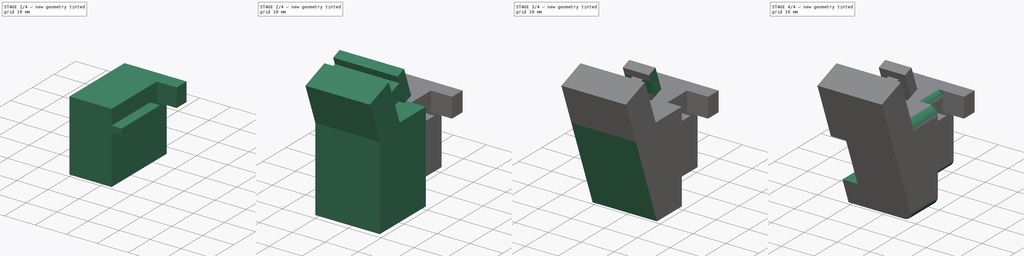
[diagram: build sequence overview — one tinted view per stage of 4, left to right]
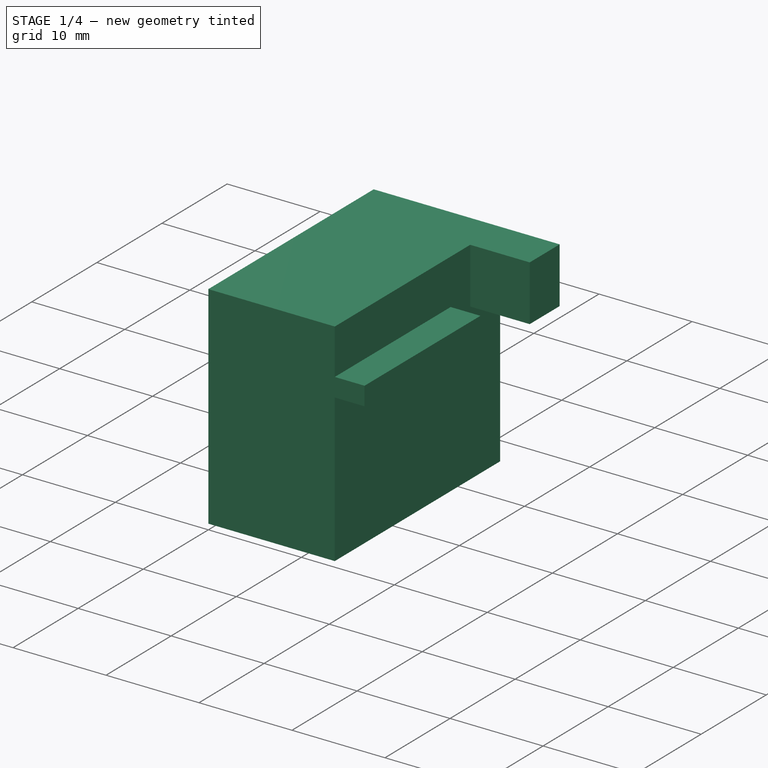
[diagram: stage 1 of 4 — iso view after this stage's code; geometry added in this stage tinted green]
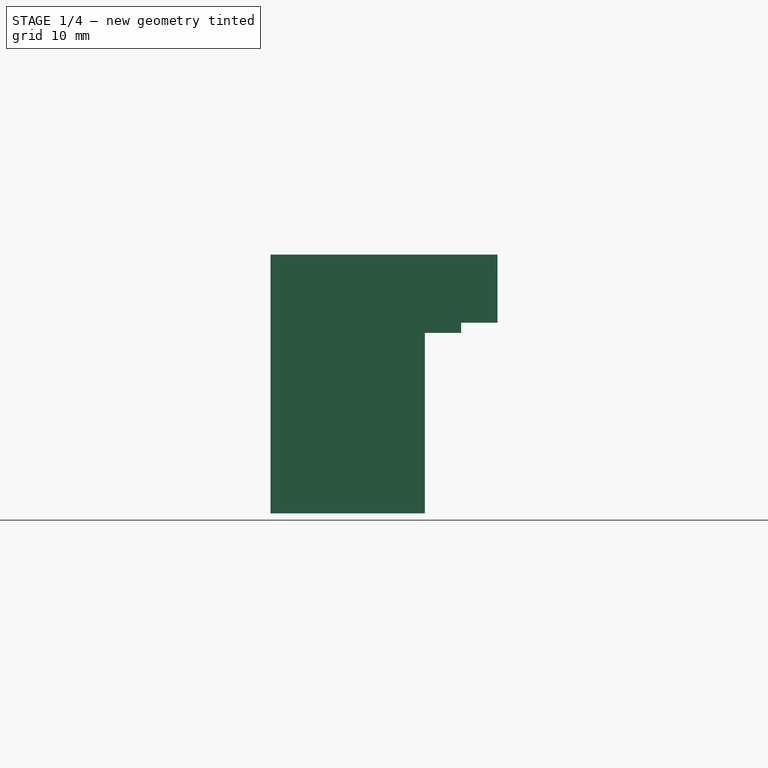
[diagram: stage 1 of 4 — front view after this stage's code; geometry added in this stage tinted green]
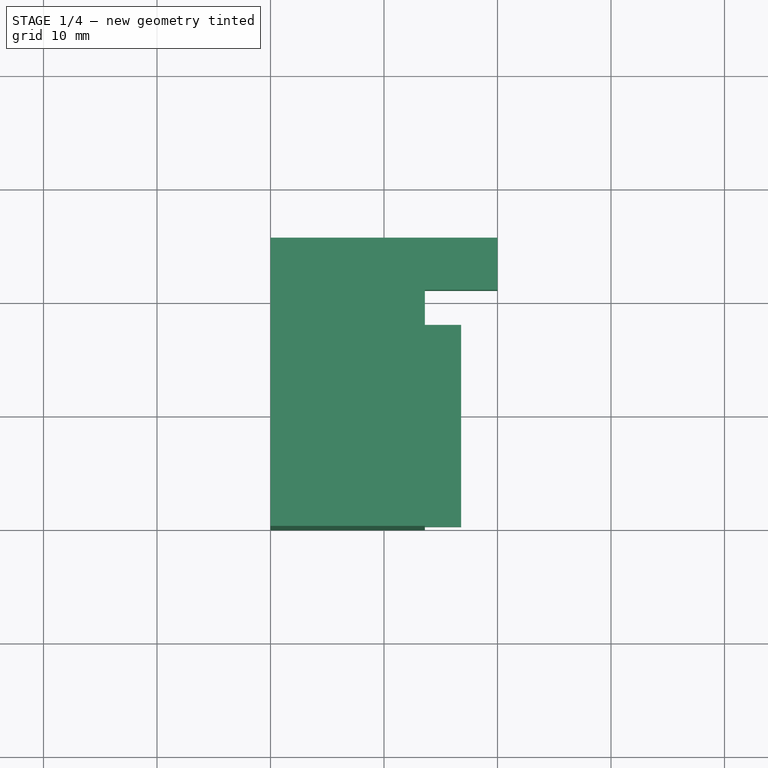
[diagram: stage 1 of 4 — top view after this stage's code; geometry added in this stage tinted green]
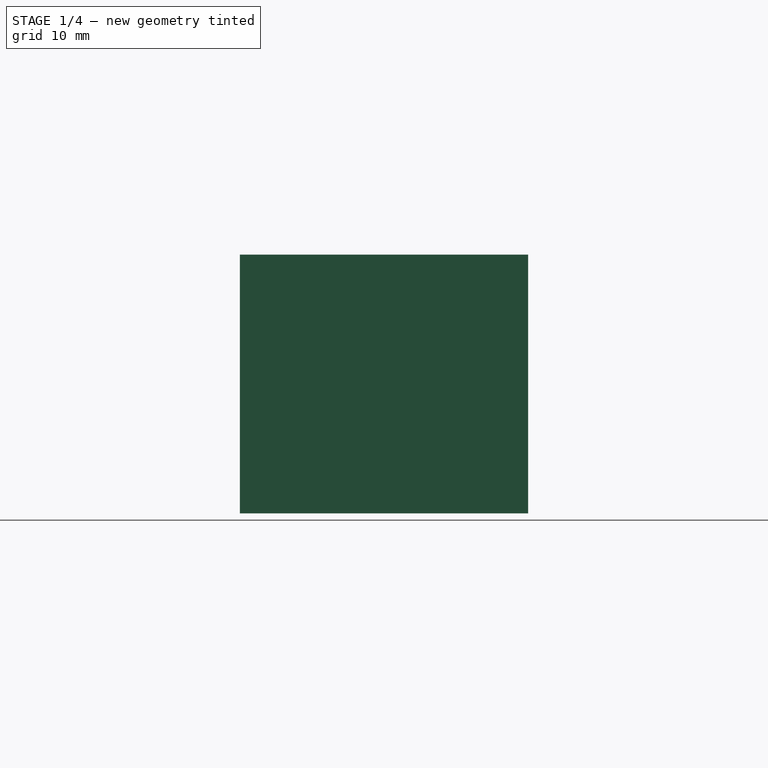
[diagram: stage 1 of 4 — right view after this stage's code; geometry added in this stage tinted green]
FCSTD DOCUMENT  (FreeCAD 0.20R29177 +426 (Git))
Label: portaVasos_derechaV3
License: All rights reserved
LicenseURL: http://en.wikipedia.org/wiki/All_rights_reserved
objects: Sketcher::SketchObject×12, PartDesign::Pad×5, PartDesign::Pocket×5, PartDesign::Plane×2, PartDesign::Fillet×2, PartDesign::Body×1, App::Part×1
note: 39 computed .brp shape members not serialized (recipe doc carries the construction recipe); baked Part::Feature solids carry a one-line shape summary decoded from their .brp

FEATURE [Sketcher::SketchObject] Sketch
  FullyConstrained = true
  MapMode = 5
  Placement = pos=(0,0,0) rot=(1,0,0;1.5708rad)
  Support = -> [XZ_Plane001]
  sketch-geometry (5):
    g0: GeomPoint X=0 Y=1 Z=0
    g1: LineSegment StartX=0 StartY=1 StartZ=0 EndX=13.6 EndY=1 EndZ=0
    g2: LineSegment StartX=13.6 StartY=1 StartZ=0 EndX=13.6 EndY=23.8 EndZ=0
    g3: LineSegment StartX=13.6 StartY=23.8 StartZ=0 EndX=0 EndY=23.8 EndZ=0
    g4: LineSegment StartX=0 StartY=23.8 StartZ=0 EndX=0 EndY=1 EndZ=0
  constraints (13):
    c: DistanceY(g-1,g0) = 1
    c: DistanceX(g-1,g0) = 0
    c: Coincident(g1,g2)
    c: Coincident(g2,g3)
    c: Coincident(g3,g4)
    c: Coincident(g4,g1)
    c: Horizontal(g1)
    c: Horizontal(g3)
    c: Vertical(g2)
    c: Vertical(g4)
    c: Coincident(g1,g0)
    c: DistanceX(g1,g1) = 13.6
    c: DistanceY(g4,g4) = 22.8
FEATURE [Sketcher::SketchObject] Sketch001
  FullyConstrained = true
  MapMode = 5
  Placement = pos=(0,0,0) rot=(1,0,0;1.5708rad)
  Support = -> [XZ_Plane001]
  sketch-geometry (5):
    g0: GeomPoint X=13.6 Y=16.9 Z=0
    g1: LineSegment StartX=13.6 StartY=16.9 StartZ=0 EndX=16.8 EndY=16.9 EndZ=0
    g2: LineSegment StartX=16.8 StartY=16.9 StartZ=0 EndX=16.8 EndY=18.9 EndZ=0
    g3: LineSegment StartX=16.8 StartY=18.9 StartZ=0 EndX=13.6 EndY=18.9 EndZ=0
    g4: LineSegment StartX=13.6 StartY=18.9 StartZ=0 EndX=13.6 EndY=16.9 EndZ=0
  constraints (13):
    c: DistanceX(g-1,g0) = 13.6
    c: DistanceY(g-1,g0) = 16.9
    c: Coincident(g1,g2)
    c: Coincident(g2,g3)
    c: Coincident(g3,g4)
    c: Coincident(g4,g1)
    c: Horizontal(g1)
    c: Horizontal(g3)
    c: Vertical(g2)
    c: Vertical(g4)
    c: Coincident(g1,g0)
    c: DistanceX(g1,g1) = 3.2
    c: DistanceY(g2,g2) = 2
FEATURE [Sketcher::SketchObject] Sketch002
  FullyConstrained = true
  MapMode = 5
  Placement = pos=(0,0,0) rot=(1,0,0;1.5708rad)
  Support = -> [XZ_Plane001]
  sketch-geometry (5):
    g0: GeomPoint X=0 Y=23.8 Z=0
    g1: LineSegment StartX=0 StartY=23.8 StartZ=0 EndX=20 EndY=23.8 EndZ=0
    g2: LineSegment StartX=20 StartY=23.8 StartZ=0 EndX=20 EndY=17.8 EndZ=0
    g3: LineSegment StartX=20 StartY=17.8 StartZ=0 EndX=0 EndY=17.8 EndZ=0
    g4: LineSegment StartX=0 StartY=17.8 StartZ=0 EndX=0 EndY=23.8 EndZ=0
  constraints (13):
    c: DistanceY(g-1,g0) = 23.8
    c: DistanceX(g0,g-1) = 0
    c: Coincident(g1,g2)
    c: Coincident(g2,g3)
    c: Coincident(g3,g4)
    c: Coincident(g4,g1)
    c: Horizontal(g1)
    c: Horizontal(g3)
    c: Vertical(g2)
    c: Vertical(g4)
    c: Coincident(g1,g0)
    c: DistanceY(g2,g2) = 6
    c: DistanceX(g3,g3) = 20
FEATURE [Sketcher::SketchObject] Sketch003
  FullyConstrained = true
  MapMode = 5
  Placement = pos=(0,0,0) rot=(1,0,0;1.5708rad)
  Support = -> [XZ_Plane001]
  sketch-geometry (5):
    g0: GeomPoint X=0 Y=18.2 Z=0
    g1: LineSegment StartX=0 StartY=18.2 StartZ=0 EndX=4.6 EndY=18.2 EndZ=0
    g2: LineSegment StartX=4.6 StartY=18.2 StartZ=0 EndX=4.6 EndY=4.6 EndZ=0
    g3: LineSegment StartX=4.6 StartY=4.6 StartZ=0 EndX=0 EndY=4.6 EndZ=0
    g4: LineSegment StartX=0 StartY=4.6 StartZ=0 EndX=0 EndY=18.2 EndZ=0
  constraints (13):
    c: DistanceY(g-1,g0) = 18.2
    c: DistanceX(g0,g-1) = 0
    c: Coincident(g1,g2)
    c: Coincident(g2,g3)
    c: Coincident(g3,g4)
    c: Coincident(g4,g1)
    c: Horizontal(g1)
    c: Horizontal(g3)
    c: Vertical(g2)
    c: Vertical(g4)
    c: Coincident(g1,g0)
    c: DistanceY(g2,g2) = 13.6
    c: DistanceX(g3,g3) = 4.6
FEATURE [PartDesign::Pad] Pad
  Direction = (0,-1,-2e-16)
  Length = 25.4
  Length2 = 10
  Placement = pos=(0,0,0) rot=(1,0,0;1.5708rad)
  Profile = -> Sketch
  ReferenceAxis = -> Sketch [N_Axis]
  Reversed = true
  Type = 0
FEATURE [PartDesign::Pad] Pad001
  BaseFeature = -> Pad
  Direction = (0,-1,-2e-16)
  Length = 17.8
  Length2 = 10
  Placement = pos=(0,0,0) rot=(1,0,0;1.5708rad)
  Profile = -> Sketch001
  ReferenceAxis = -> Sketch001 [N_Axis]
  Reversed = true
  Type = 0
FEATURE [PartDesign::Pad] Pad002
  BaseFeature = -> Pad001
  Direction = (0,-1,-2e-16)
  Length = 20.8
  Length2 = -25.4
  Placement = pos=(0,0,0) rot=(1,0,0;1.5708rad)
  Profile = -> Sketch002
  ReferenceAxis = -> Sketch002 [N_Axis]
  Reversed = true
  Type = 4
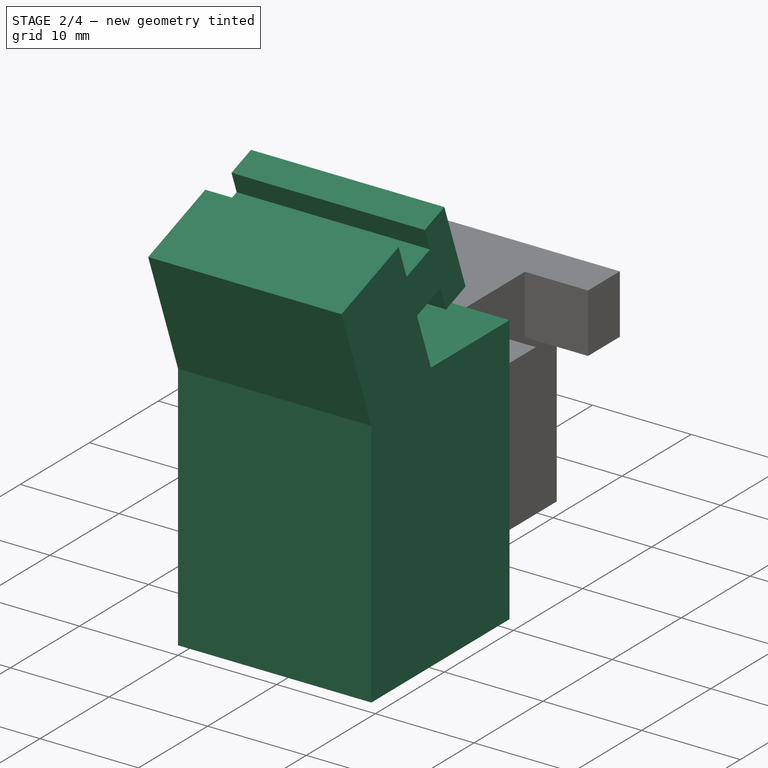
[diagram: stage 2 of 4 — iso view after this stage's code; geometry added in this stage tinted green]
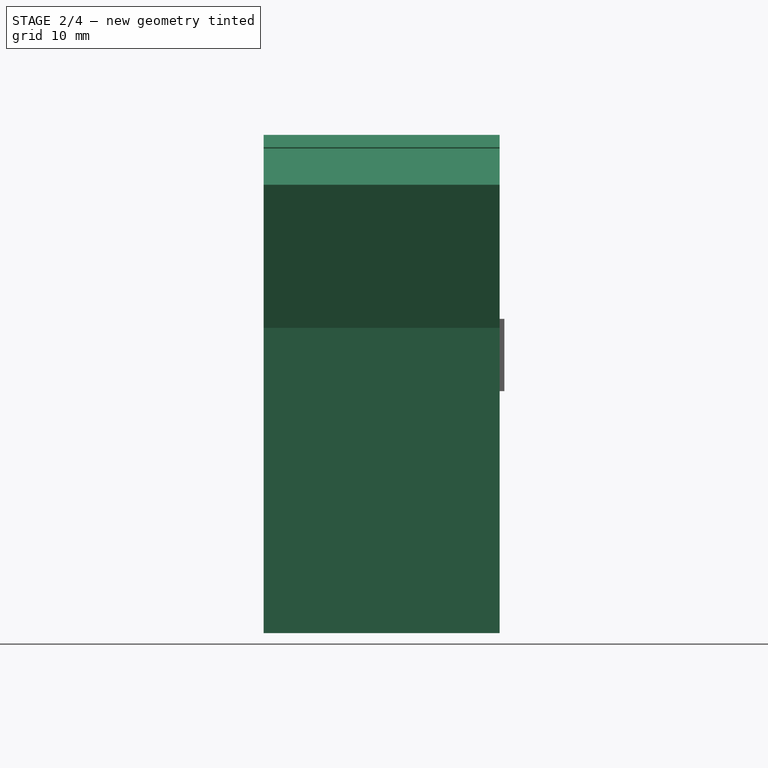
[diagram: stage 2 of 4 — front view after this stage's code; geometry added in this stage tinted green]
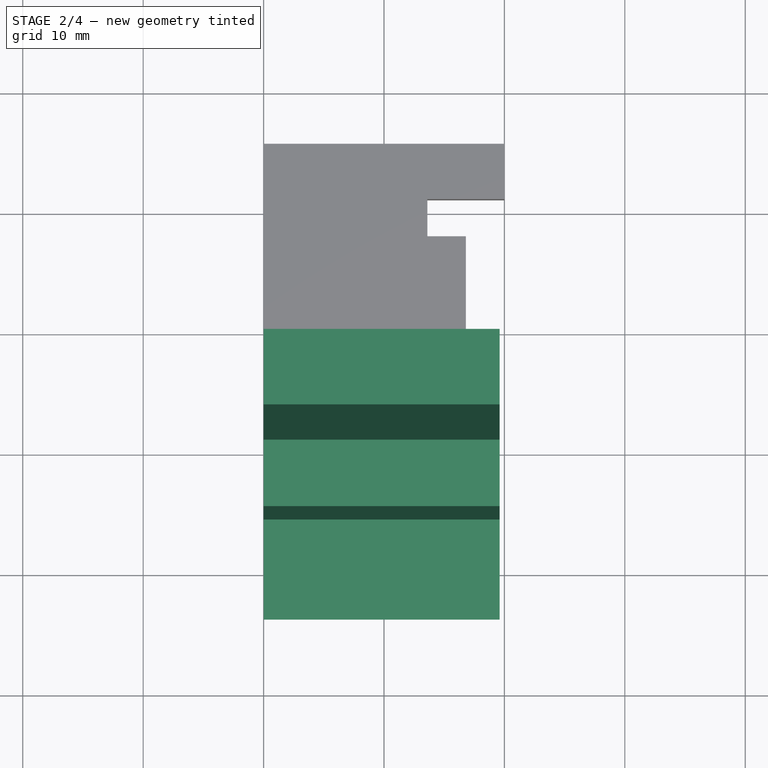
[diagram: stage 2 of 4 — top view after this stage's code; geometry added in this stage tinted green]
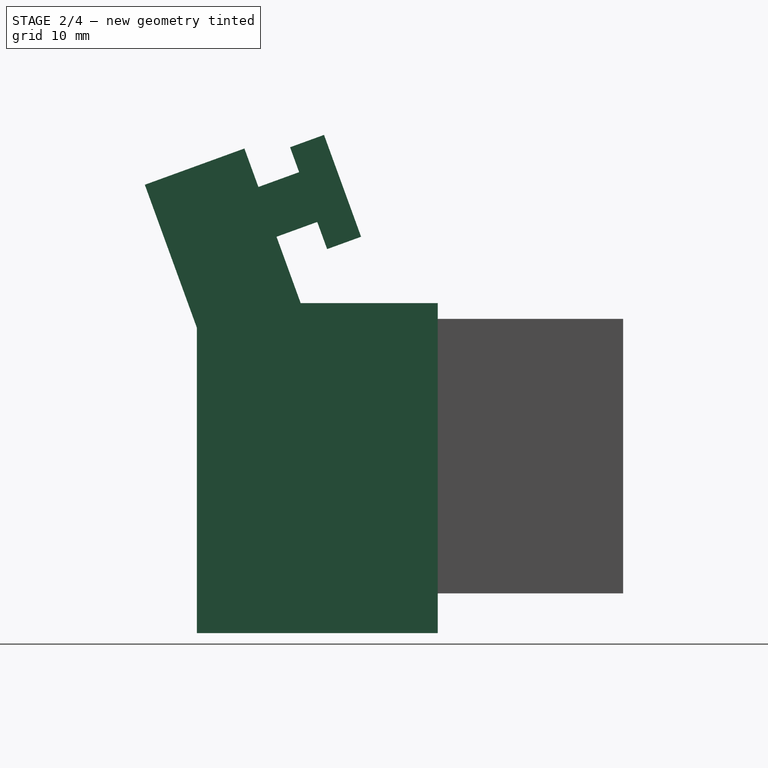
[diagram: stage 2 of 4 — right view after this stage's code; geometry added in this stage tinted green]
FEATURE [Sketcher::SketchObject] Sketch004
  FullyConstrained = false
  MapMode = 5
  Placement = pos=(0,0,0) rot=(1,0,0;1.5708rad)
  Support = -> [XZ_Plane001]
  sketch-geometry (6):
    g0: ArcOfCircle CenterX=12.1352 CenterY=21.3353 CenterZ=0 NormalX=0 NormalY=0 NormalZ=1 AngleXU=0 Radius=1.46475 StartAngle=-2.0952e-12 EndAngle=1.5708
    g1: ArcOfCircle CenterX=12.1352 CenterY=1.46475 CenterZ=0 NormalX=0 NormalY=0 NormalZ=1 AngleXU=0 Radius=1.46475 StartAngle=4.71239 EndAngle=6.28319
    g2: LineSegment StartX=12.1352 StartY=-1.3e-15 StartZ=0 EndX=13.6 EndY=-1.3e-15 EndZ=0
    g3: LineSegment StartX=13.6 StartY=-1.3e-15 StartZ=0 EndX=13.6 EndY=1.46475 EndZ=0
    g4: LineSegment StartX=12.1352 StartY=22.8 StartZ=0 EndX=13.6 EndY=22.8 EndZ=0
    g5: LineSegment StartX=13.6 StartY=22.8 StartZ=0 EndX=13.6 EndY=21.3353 EndZ=0
  constraints (10):
    c: Coincident(g2,g3)
    c: Horizontal(g2)
    c: Vertical(g3)
    c: Coincident(g2,g1)
    c: Coincident(g3,g1)
    c: Coincident(g4,g5)
    c: Horizontal(g4)
    c: Vertical(g5)
    c: Coincident(g4,g0)
    c: Coincident(g5,g0)
FEATURE [Sketcher::SketchObject] Sketch005
  FullyConstrained = true
  MapMode = 5
  Placement = pos=(0,0,0) rot=(1,0,0;1.5708rad)
  Support = -> [XZ_Plane001]
  sketch-geometry (5):
    g0: GeomPoint X=0 Y=-2.3 Z=0
    g1: LineSegment StartX=0 StartY=-2.3 StartZ=0 EndX=19.6 EndY=-2.3 EndZ=0
    g2: LineSegment StartX=19.6 StartY=-2.3 StartZ=0 EndX=19.6 EndY=25.1 EndZ=0
    g3: LineSegment StartX=19.6 StartY=25.1 StartZ=0 EndX=0 EndY=25.1 EndZ=0
    g4: LineSegment StartX=0 StartY=25.1 StartZ=0 EndX=0 EndY=-2.3 EndZ=0
  constraints (13):
    c: DistanceY(g0,g-1) = 2.3
    c: DistanceX(g-1,g0) = 0
    c: Coincident(g1,g2)
    c: Coincident(g2,g3)
    c: Coincident(g3,g4)
    c: Coincident(g4,g1)
    c: Horizontal(g1)
    c: Horizontal(g3)
    c: Vertical(g2)
    c: Vertical(g4)
    c: Coincident(g1,g0)
    c: DistanceX(g1,g1) = 19.6
    c: DistanceY(g2,g2) = 27.4
FEATURE [Sketcher::SketchObject] Sketch006
  FullyConstrained = false
  MapMode = 5
  Placement = pos=(0,0,0) rot=(0.57735,0.57735,0.57735;2.0944rad)
  Support = -> [YZ_Plane001]
  sketch-geometry (25):
    g0: LineSegment StartX=0 StartY=24.6 StartZ=0 EndX=-1.2 EndY=24.6 EndZ=0
    g1: LineSegment StartX=-1.2 StartY=24.6 StartZ=0 EndX=-1.2 EndY=29.982 EndZ=0
    g2: LineSegment StartX=-1.2 StartY=40.4 StartZ=0 EndX=-10 EndY=40.4 EndZ=0
    g3: LineSegment StartX=-10 StartY=40.4 StartZ=0 EndX=-10 EndY=24.6 EndZ=0
    g4: GeomPoint X=2e-16 Y=-1.8 Z=0
    g5-g8: Circle x4 (B-spline internal-alignment scaffolding for g9; pole/knot coordinates omitted)
    g9: BSplineCurve PolesCount=4 KnotsCount=2 Degree=3 IsPeriodic=0
    g10: GeomPoint X=-10 Y=24.6 Z=0
    g11: GeomPoint X=2e-16 Y=-1.8 Z=0
    g12: LineSegment StartX=-1.2 StartY=24.582 StartZ=0 EndX=-1.2 EndY=29.982 EndZ=0
    g13: LineSegment StartX=-1.2 StartY=35.382 StartZ=0 EndX=2 EndY=35.382 EndZ=0
    g14: LineSegment StartX=2 StartY=29.982 StartZ=0 EndX=-1.2 EndY=29.982 EndZ=0
    g15: LineSegment StartX=-1.2 StartY=35.382 StartZ=0 EndX=-1.2 EndY=40.4 EndZ=0
    g16: LineSegment StartX=0 StartY=24.6 StartZ=0 EndX=0 EndY=-1.8 EndZ=0
    g17: LineSegment StartX=2 StartY=35.382 StartZ=0 EndX=2 EndY=37.582 EndZ=0
    g18: LineSegment StartX=2 StartY=29.982 StartZ=0 EndX=2 EndY=27.582 EndZ=0
    g19: LineSegment StartX=2 StartY=27.582 StartZ=0 EndX=5 EndY=27.582 EndZ=0
    g20: LineSegment StartX=5 StartY=27.582 StartZ=0 EndX=2 EndY=27.582 EndZ=0
    g21: LineSegment StartX=2 StartY=27.582 StartZ=0 EndX=2 EndY=29.982 EndZ=0
    g22: LineSegment StartX=2 StartY=37.582 StartZ=0 EndX=5 EndY=37.582 EndZ=0
    g23: LineSegment StartX=5 StartY=37.582 StartZ=0 EndX=5 EndY=27.582 EndZ=0
    g24: LineSegment StartX=2 StartY=35.382 StartZ=0 EndX=2 EndY=37.582 EndZ=0
  constraints (50):
    c: Horizontal(g0)
    c: Coincident(g15,g2)
    c: Coincident(g2,g3)
    c: Horizontal(g2)
    c: Vertical(g1)
    c: Vertical(g3)
    c: DistanceX(g2,g2) = 8.8
    c: DistanceY(g3,g3) = 15.8
    c: DistanceY(g4,g-1) = 1.8
    c: DistanceX(g4,g-1) = 0
    c: Weight(g5) = 1
    c: Equal(g5,g6)
    c: Equal(g5,g7)
    c: Equal(g5,g8)
    c: Coincident(g9,g4)
    c: InternalAlignment(g5-g8 -> g9) x4
    c: InternalAlignment(g10,g9)
    c: InternalAlignment(g11,g9)
    c: DistanceY(g12,g12) = 5.4
    c: Angle(g12,g0) = 1.5708
    c: DistanceY(g12,g13) = 5.4
    c: Horizontal(g13)
    c: Horizontal(g14)
    c: DistanceY(g14,g13) = 5.4
    c: DistanceX(g14,g14) = 3.2
    c: PointOnObject(g1,g12)
    c: PointOnObject(g0,g1)
    c: Vertical(g16)
    c: Coincident(g15,g13)
    c: Coincident(g17,g13)
    c: Vertical(g17)
    c: DistanceY(g17,g17) = 2.2
    c: Vertical(g18)
    c: DistanceY(g18,g18) = 2.4
    c: Coincident(g19,g18)
    c: Horizontal(g19)
    c: DistanceX(g19,g19) = 3
    c: Coincident(g14,g1)
    c: Coincident(g20,g21)
    c: Coincident(g24,g22)
    c: Coincident(g22,g23)
    c: Coincident(g23,g20)
    c: Horizontal(g20)
    c: Horizontal(g22)
    c: Vertical(g21)
    c: Vertical(g23)
    c: Coincident(g20,g19)
    c: Coincident(g24,g17)
    c: PointOnObject(g21,g14)
    c: PointOnObject(g24,g13)
FEATURE [Sketcher::SketchObject] Sketch007
  FullyConstrained = true
  MapMode = 5
  Placement = pos=(0,0,0) rot=(0.57735,0.57735,0.57735;2.0944rad)
  Support = -> [YZ_Plane001]
  sketch-geometry (13):
    g0: GeomPoint X=-1.2 Y=24.6 Z=0
    g1: LineSegment StartX=-1.2 StartY=24.6 StartZ=0 EndX=-9.4693 EndY=21.5902 EndZ=0
    g2: LineSegment StartX=-9.4693 StartY=21.5902 StartZ=0 EndX=-14.326 EndY=34.9339 EndZ=0
    g3: LineSegment StartX=-14.326 StartY=34.9339 StartZ=0 EndX=-6.05669 EndY=37.9436 EndZ=0
    g4: LineSegment StartX=-6.05669 StartY=37.9436 StartZ=0 EndX=-4.89382 EndY=34.7487 EndZ=0
    g5: LineSegment StartX=-1.2 StartY=24.6 StartZ=0 EndX=-3.38893 EndY=30.614 EndZ=0
    g6: LineSegment StartX=-4.89382 StartY=34.7487 StartZ=0 EndX=-1.51092 EndY=35.98 EndZ=0
    g7: LineSegment StartX=-3.38893 StartY=30.614 StartZ=0 EndX=-0.00603548 EndY=31.8453 EndZ=0
    g8: LineSegment StartX=-1.51092 StartY=35.98 StartZ=0 EndX=-2.26337 EndY=38.0473 EndZ=0
    g9: LineSegment StartX=-0.00603548 StartY=31.8453 StartZ=0 EndX=0.814813 EndY=29.59 EndZ=0
    g10: LineSegment StartX=-2.26337 StartY=38.0473 StartZ=0 EndX=0.555709 EndY=39.0733 EndZ=0
    g11: LineSegment StartX=0.814813 StartY=29.59 StartZ=0 EndX=3.63389 EndY=30.6161 EndZ=0
    g12: LineSegment StartX=0.555709 StartY=39.0733 StartZ=0 EndX=3.63389 EndY=30.6161 EndZ=0
  constraints (37):
    c: DistanceX(g0,g-1) = 1.2
    c: DistanceY(g-1,g0) = 24.6
    c: Coincident(g1,g0)
    c: Angle(g1,g-2) = 1.22173
    c: Distance(g1) = 8.8
    c: Coincident(g2,g1)
    c: Angle(g1,g2) = 1.5708
    c: Distance(g2) = 14.2
    c: Coincident(g3,g2)
    c: Angle(g2,g3) = 1.5708
    c: Distance(g3) = 8.8
    c: Coincident(g4,g3)
    c: Angle(g3,g4) = 1.5708
    c: Distance(g4) = 3.4
    c: Coincident(g5,g1)
    c: Angle(g5,g1) = 1.5708
    c: Distance(g5) = 6.4
    c: Coincident(g6,g4)
    c: Angle(g6,g4) = 1.5708
    c: Distance(g6) = 3.6
    c: Coincident(g7,g5)
    c: Angle(g5,g7) = 1.5708
    c: Distance(g7) = 3.6
    c: Coincident(g8,g6)
    c: Coincident(g9,g7)
    c: Angle(g8,g6) = 1.5708
    c: Angle(g7,g9) = 1.5708
    c: Distance(g8) = 2.2
    c: Distance(g9) = 2.4
    c: Coincident(g10,g8)
    c: Coincident(g11,g9)
    c: Angle(g8,g10) = 1.5708
    c: Angle(g11,g9) = 1.5708
    c: Distance(g10) = 3
    c: Distance(g11) = 3
    c: Coincident(g12,g10)
    c: Coincident(g12,g11)
FEATURE [PartDesign::Pocket] Pocket
  BaseFeature = -> Pad002
  Direction = (0,1,2e-16)
  Length = 3.6
  Length2 = 5
  Placement = pos=(0,0,0) rot=(1,0,0;1.5708rad)
  Profile = -> Sketch003
  ReferenceAxis = -> Sketch003 [N_Axis]
  Type = 0
FEATURE [PartDesign::Pad] Pad003
  BaseFeature = -> Pocket
  Direction = (0,-1,-2e-16)
  Length = 10
  Length2 = 10
  Placement = pos=(0,0,0) rot=(1,0,0;1.5708rad)
  Profile = -> Sketch005
  ReferenceAxis = -> Sketch005 [N_Axis]
  Reversed = true
  Type = 4
FEATURE [PartDesign::Pad] Pad004
  BaseFeature = -> Pad003
  Direction = (1,-2e-16,3e-16)
  Length = 19.6
  Length2 = 10
  Placement = pos=(0,0,0) rot=(1,0,0;1.5708rad)
  Profile = -> Sketch007
  ReferenceAxis = -> Sketch007 [N_Axis]
  Type = 0
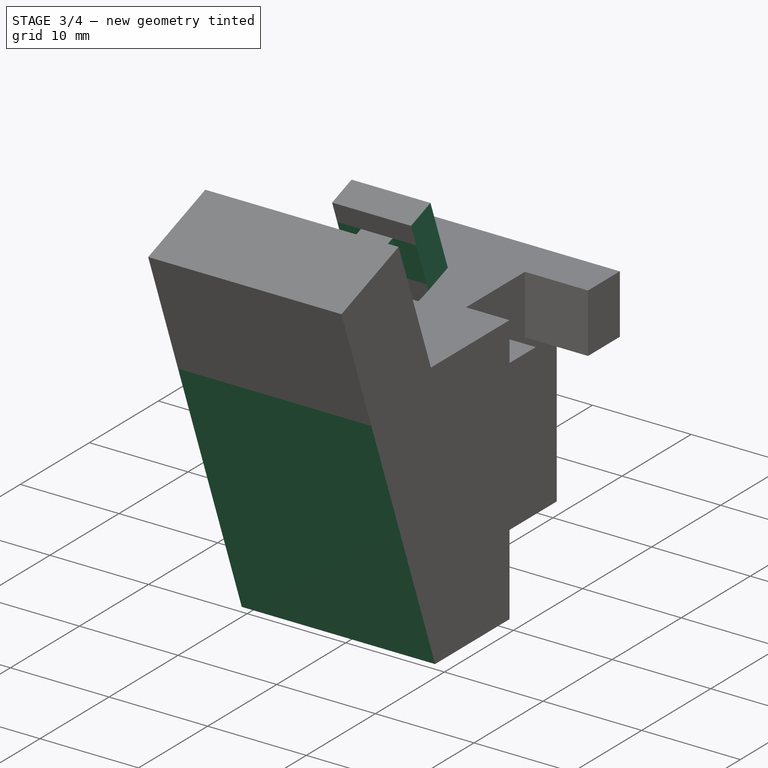
[diagram: stage 3 of 4 — iso view after this stage's code; geometry added in this stage tinted green]
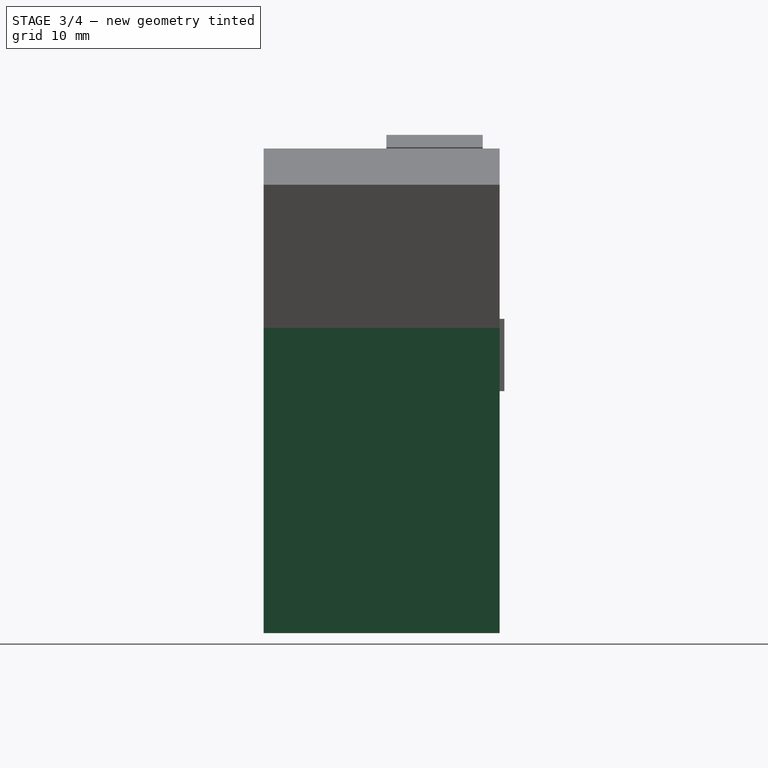
[diagram: stage 3 of 4 — front view after this stage's code; geometry added in this stage tinted green]
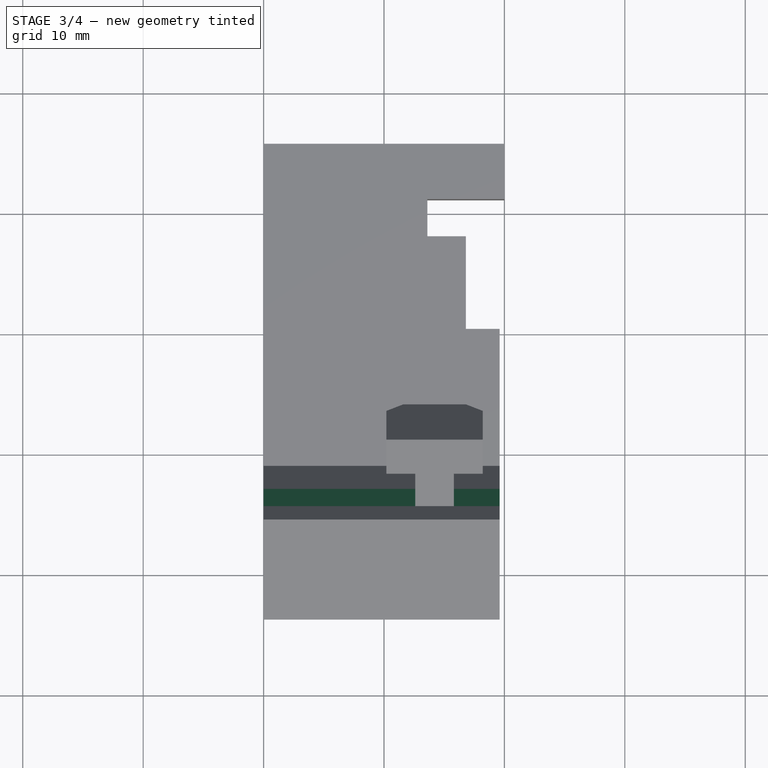
[diagram: stage 3 of 4 — top view after this stage's code; geometry added in this stage tinted green]
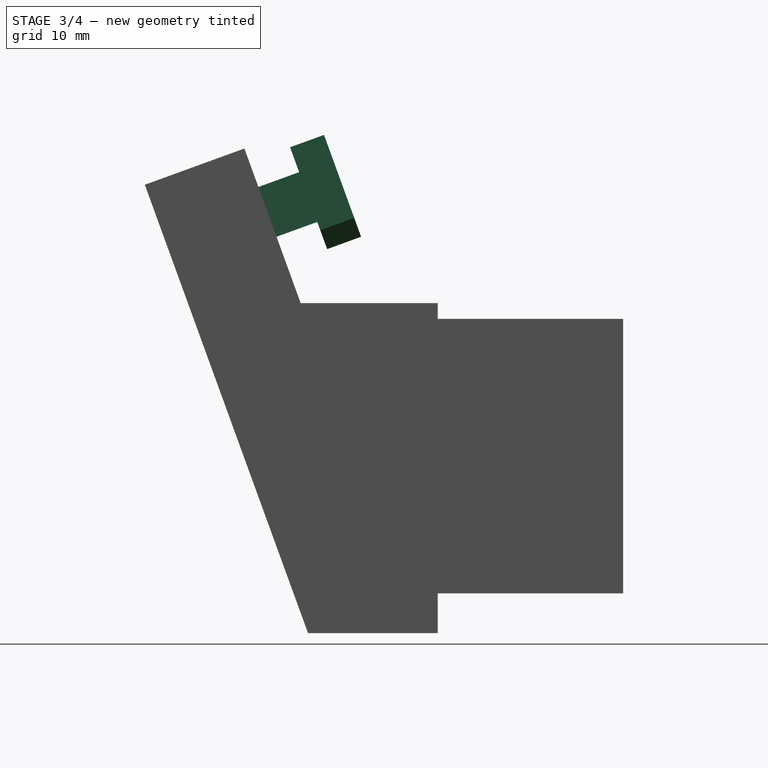
[diagram: stage 3 of 4 — right view after this stage's code; geometry added in this stage tinted green]
FEATURE [PartDesign::Plane] DatumPlane
  Length = 61.7707
  MapMode = 5
  Placement = pos=(-1.16e-14,-11.7405,32.2567) rot=(0,-0.173648,0.984808;3.14159rad)
  ResizeMode = 0
  Support = -> [Pad004]
  Width = 81.0456
FEATURE [Sketcher::SketchObject] Sketch008
  ExternalGeometry = -> [Pad004]
  FullyConstrained = true
  MapMode = 5
  Placement = pos=(-1.16e-14,-11.7405,32.2567) rot=(0,-0.173648,0.984808;3.14159rad)
  Support = -> [DatumPlane]
  sketch-geometry (8):
    g0: LineSegment StartX=-12.6 StartY=-10.8861 StartZ=0 EndX=-1.8e-15 EndY=-10.8861 EndZ=0
    g1: LineSegment StartX=-2.7e-15 StartY=-10.8861 StartZ=0 EndX=-2.7e-15 EndY=-7.28606 EndZ=0
    g2: LineSegment StartX=-2.7e-15 StartY=-7.28606 StartZ=0 EndX=-12.6 EndY=-7.28606 EndZ=0
    g3: LineSegment StartX=-12.6 StartY=-10.8861 StartZ=0 EndX=-12.6 EndY=-7.28606 EndZ=0
    g4: LineSegment StartX=-19.6 StartY=-10.8861 StartZ=0 EndX=-15.8 EndY=-10.8861 EndZ=0
    g5: LineSegment StartX=-15.8 StartY=-10.8861 StartZ=0 EndX=-15.8 EndY=-7.28606 EndZ=0
    g6: LineSegment StartX=-15.8 StartY=-7.28606 StartZ=0 EndX=-19.6 EndY=-7.28606 EndZ=0
    g7: LineSegment StartX=-19.6 StartY=-7.28606 StartZ=0 EndX=-19.6 EndY=-10.8861 EndZ=0
  constraints (22):
    c: Coincident(g0,g1)
    c: Coincident(g1,g2)
    c: Horizontal(g0)
    c: Horizontal(g2)
    c: Vertical(g1)
    c: Coincident(g1,g-3)
    c: DistanceX(g0,g0) = 12.6
    c: Coincident(g3,g0)
    c: Vertical(g3)
    c: Coincident(g3,g2)
    c: Coincident(g4,g5)
    c: Coincident(g5,g6)
    c: Coincident(g6,g7)
    c: Coincident(g7,g4)
    c: Horizontal(g4)
    c: Horizontal(g6)
    c: Vertical(g5)
    c: Vertical(g7)
    c: Coincident(g4,g-4)
    c: DistanceX(g6,g6) = 3.8
    c: DistanceY(g7,g7) = 3.6
    c: DistanceY(g3,g3) = 3.6
FEATURE [PartDesign::Pocket] Pocket001
  BaseFeature = -> Pad004
  Direction = (3e-16,0.34202,-0.939693)
  Length = 4.4
  Length2 = 5
  Placement = pos=(0,0,0) rot=(1,0,0;1.5708rad)
  Profile = -> Sketch008
  ReferenceAxis = -> Sketch008 [N_Axis]
  Type = 0
FEATURE [PartDesign::Plane] DatumPlane001
  Length = 62.4456
  MapMode = 5
  Placement = pos=(0,6.84666,2.49198) rot=(-1,0,0;1.22173rad)
  ResizeMode = 0
  Support = -> [Pocket001]
  Width = 89.8927
FEATURE [Sketcher::SketchObject] Sketch009
  ExternalGeometry = -> [Pocket001]
  FullyConstrained = false
  MapMode = 5
  Placement = pos=(0,6.84666,2.49198) rot=(-1,0,0;1.22173rad)
  Support = -> [DatumPlane001]
  sketch-geometry (12):
    g0: LineSegment StartX=11.6 StartY=-27.5269 StartZ=0 EndX=10.2 EndY=-29.1953 EndZ=0
    g1: LineSegment StartX=16.8 StartY=-27.5269 StartZ=0 EndX=18.2 EndY=-29.1953 EndZ=0
    g2: GeomPoint X=10.2 Y=-28.9269 Z=0
    g3: LineSegment StartX=10.2 StartY=-29.1953 StartZ=0 EndX=10.2 EndY=-36.5269 EndZ=0
    g4: GeomPoint X=18.2 Y=-28.9259 Z=0
    g5: LineSegment StartX=18.2 StartY=-36.5269 StartZ=0 EndX=18.2 EndY=-29.1953 EndZ=0
    g6: LineSegment StartX=19.6 StartY=-36.5269 StartZ=0 EndX=19.6 EndY=-27.5269 EndZ=0
    g7: LineSegment StartX=19.6 StartY=-27.5269 StartZ=0 EndX=16.8 EndY=-27.5269 EndZ=0
    g8: LineSegment StartX=0 StartY=-27.5269 StartZ=0 EndX=0 EndY=-36.5269 EndZ=0
    g9: LineSegment StartX=11.6 StartY=-27.5269 StartZ=0 EndX=0 EndY=-27.5269 EndZ=0
    g10: LineSegment StartX=0 StartY=-36.5269 StartZ=0 EndX=10.2 EndY=-36.5269 EndZ=0
    g11: LineSegment StartX=18.2 StartY=-36.5269 StartZ=0 EndX=19.6 EndY=-36.5269 EndZ=0
  constraints (20):
    c: DistanceX(g2,g-3) = 2.4
    c: DistanceY(g2,g-3) = -1
    c: Coincident(g3,g0)
    c: Vertical(g3)
    c: DistanceX(g2,g4) = 8
    c: Vertical(g5)
    c: Coincident(g1,g5)
    c: Coincident(g6,g7)
    c: Coincident(g9,g8)
    c: Horizontal(g7)
    c: Vertical(g6)
    c: Vertical(g8)
    c: Coincident(g6,g-4)
    c: Coincident(g7,g1)
    c: Coincident(g9,g0)
    c: Coincident(g10,g8)
    c: Horizontal(g10)
    c: Coincident(g11,g6)
    c: Coincident(g11,g5)
    c: Coincident(g3,g10)
FEATURE [PartDesign::Pocket] Pocket002
  BaseFeature = -> Pocket001
  Direction = (0,-0.939693,-0.34202)
  Length = 6.6
  Length2 = 5
  Placement = pos=(0,0,0) rot=(1,0,0;1.5708rad)
  Profile = -> Sketch009
  ReferenceAxis = -> Sketch009 [N_Axis]
  Reversed = true
  Type = 0
FEATURE [Sketcher::SketchObject] Sketch010
  ExternalGeometry = -> [Pocket002]
  FullyConstrained = false
  MapMode = 5
  Placement = pos=(0,0,0) rot=(0.57735,0.57735,0.57735;2.0944rad)
  Support = -> [YZ_Plane001]
  sketch-geometry (3):
    g0: LineSegment StartX=-0.773965 StartY=-2.3 StartZ=0 EndX=-14.326 EndY=-2.3 EndZ=0
    g1: LineSegment StartX=-14.326 StartY=-2.3 StartZ=0 EndX=-14.326 EndY=34.9339 EndZ=0
    g2: LineSegment StartX=-14.326 StartY=34.9339 StartZ=0 EndX=-0.773965 EndY=-2.3 EndZ=0
  constraints (6):
    c: Coincident(g0,g1)
    c: Horizontal(g0)
    c: Vertical(g1)
    c: Coincident(g2,g1)
    c: Angle(g1,g2) = 0.349066
    c: Coincident(g0,g2)
FEATURE [Sketcher::SketchObject] Sketch011
  FullyConstrained = false
  MapMode = 5
  Placement = pos=(0,0,0) rot=(1,0,0;1.5708rad)
  Support = -> [XZ_Plane001]
  sketch-geometry (4):
    g0: LineSegment StartX=0 StartY=5 StartZ=0 EndX=4.6 EndY=5 EndZ=0
    g1: LineSegment StartX=4.6 StartY=5 StartZ=0 EndX=4.6 EndY=18.8 EndZ=0
    g2: LineSegment StartX=4.6 StartY=18.8 StartZ=0 EndX=0 EndY=18.8 EndZ=0
    g3: LineSegment StartX=0 StartY=18.8 StartZ=0 EndX=0 EndY=5 EndZ=0
  constraints (11):
    c: DistanceY(g-1,g0) = 5
    c: Coincident(g0,g1)
    c: Coincident(g1,g2)
    c: Coincident(g2,g3)
    c: Coincident(g3,g0)
    c: Horizontal(g0)
    c: Horizontal(g2)
    c: Vertical(g1)
    c: Vertical(g3)
    c: DistanceY(g1,g1) = 13.8
    c: DistanceX(g0,g0) = 4.6
FEATURE [PartDesign::Pocket] Pocket003
  BaseFeature = -> Pocket002
  Direction = (-1,2e-16,-3e-16)
  Length = 19.6
  Length2 = 5
  Placement = pos=(0,0,0) rot=(1,0,0;1.5708rad)
  Profile = -> Sketch010
  ReferenceAxis = -> Sketch010 [N_Axis]
  Reversed = true
  Type = 0
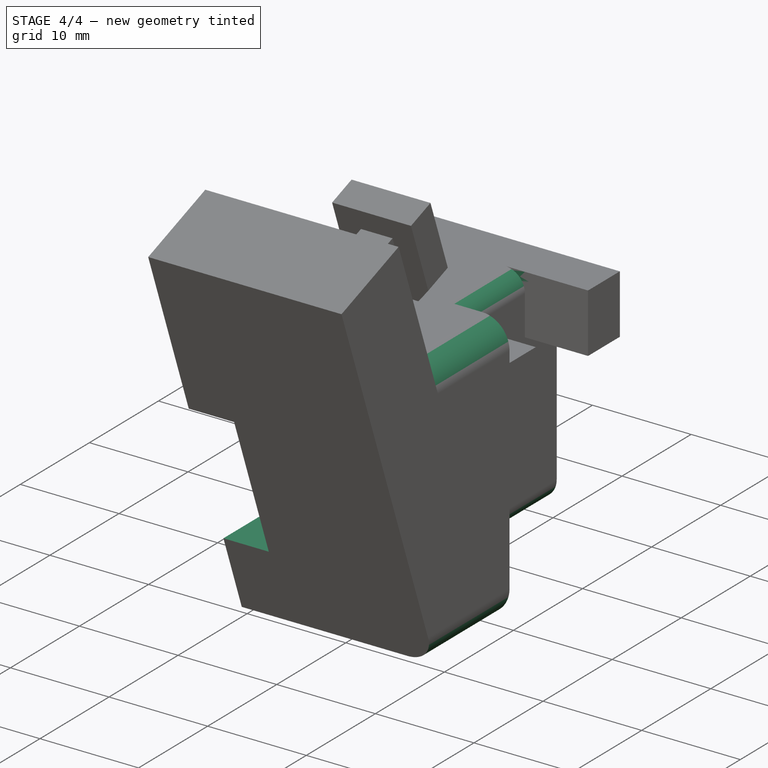
[diagram: stage 4 of 4 — iso view after this stage's code; geometry added in this stage tinted green]
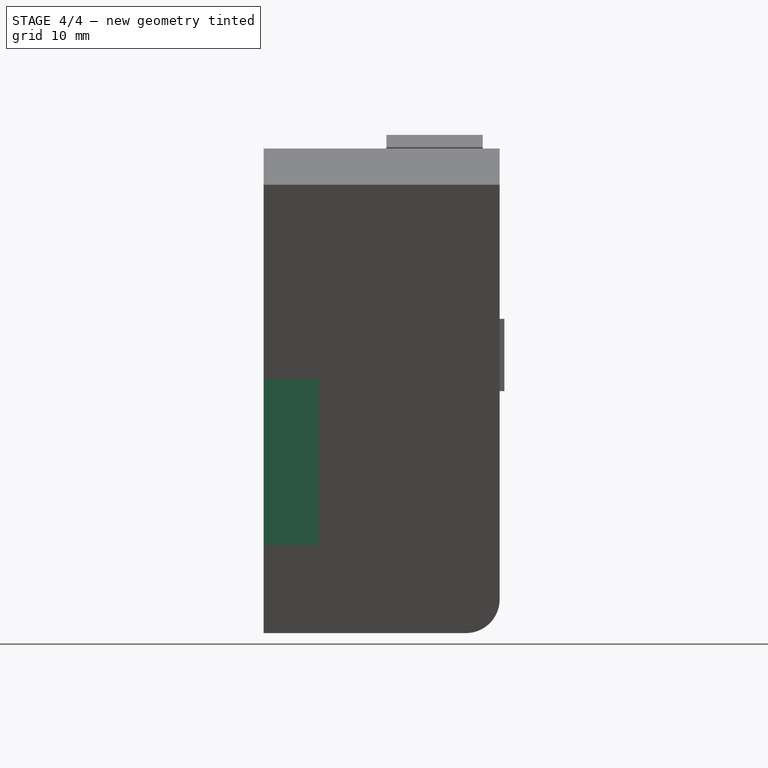
[diagram: stage 4 of 4 — front view after this stage's code; geometry added in this stage tinted green]
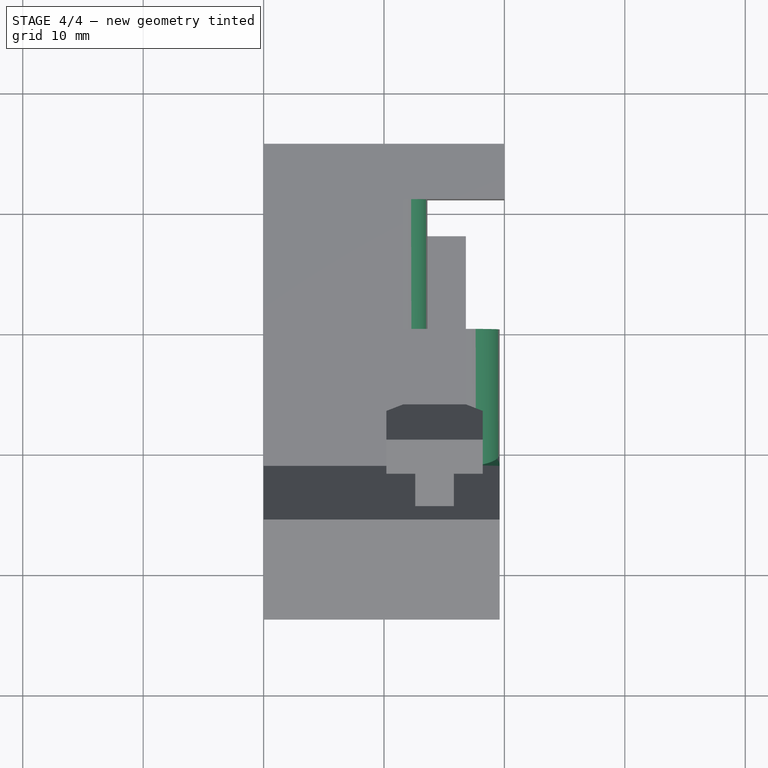
[diagram: stage 4 of 4 — top view after this stage's code; geometry added in this stage tinted green]
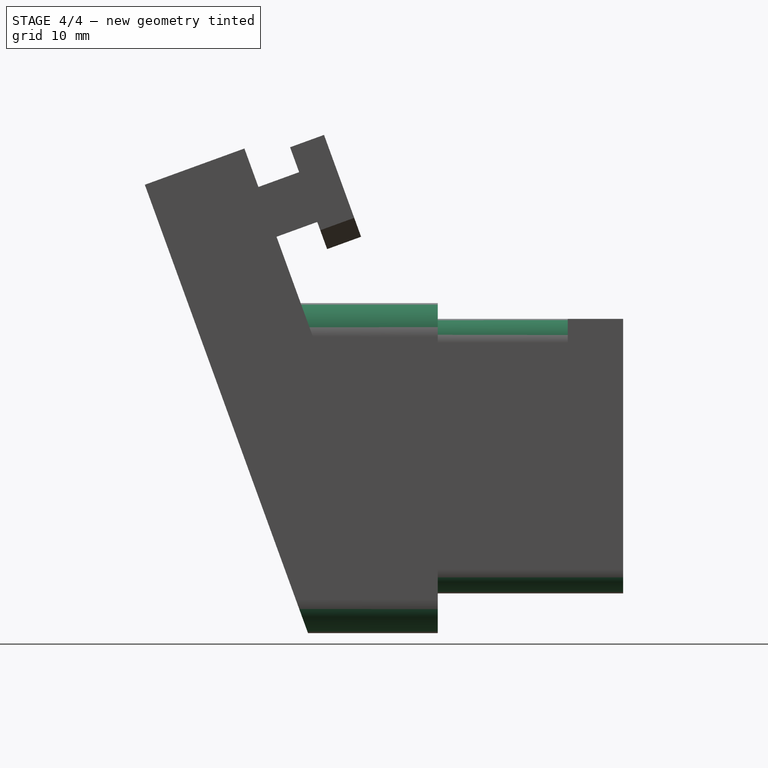
[diagram: stage 4 of 4 — right view after this stage's code; geometry added in this stage tinted green]
FEATURE [PartDesign::Pocket] Pocket004
  BaseFeature = -> Pocket003
  Direction = (0,1,2e-16)
  Length = 10
  Length2 = 2
  Placement = pos=(0,0,0) rot=(1,0,0;1.5708rad)
  Profile = -> Sketch011
  ReferenceAxis = -> Sketch011 [N_Axis]
  Reversed = true
  Type = 4
FEATURE [PartDesign::Fillet] Fillet
  Base = -> Pocket004 [Edge52,Edge54]
  BaseFeature = -> Pocket004
  Placement = pos=(0,0,0) rot=(1,0,0;1.5708rad)
  Radius = 2.8
  SupportTransform = false
  UseAllEdges = false
FEATURE [PartDesign::Fillet] Fillet001
  Base = -> Fillet [Edge40,Edge32]
  BaseFeature = -> Fillet
  Placement = pos=(0,0,0) rot=(1,0,0;1.5708rad)
  Radius = 2
  SupportTransform = false
  UseAllEdges = false
FEATURE [PartDesign::Body] Body
  Group = -> [Sketch,Sketch001,Sketch002,Sketch003,Pad,Pad001,Pad002,Pocket,Sketch004,Sketch005,Pad003,Sketch006,Sketch007,Pad004,DatumPlane,Sketch008,Pocket001,DatumPlane001,Sketch009,Pocket002,Sketch010,Pocket003,Sketch011,Pocket004,Fillet,Fillet001]
  Origin = -> Origin001
  Tip = -> Fillet001
FEATURE [App::Part] Part
  Group = -> [Body]
  Origin = -> Origin
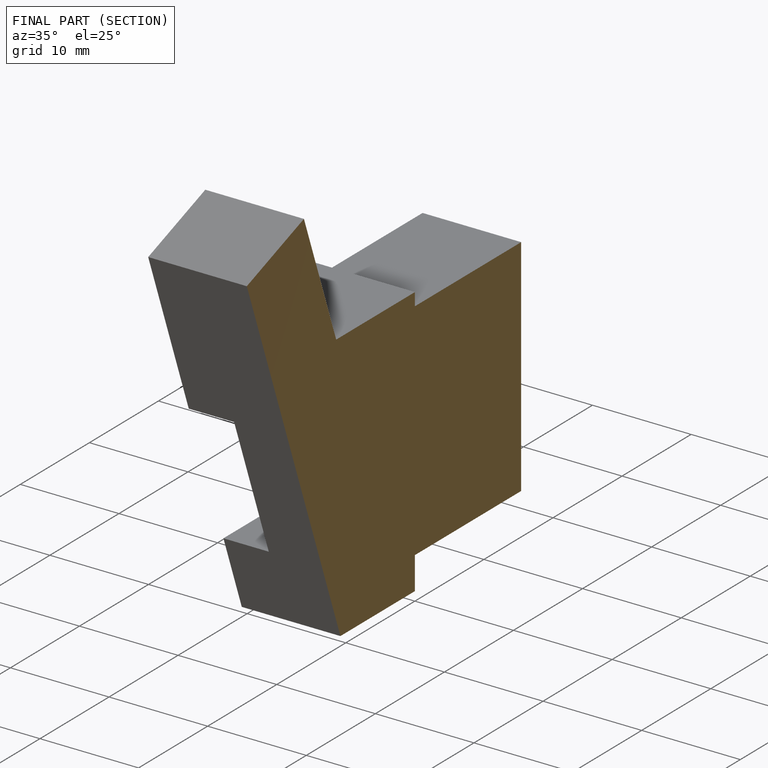
[diagram: finished part — half-section view (interior)]
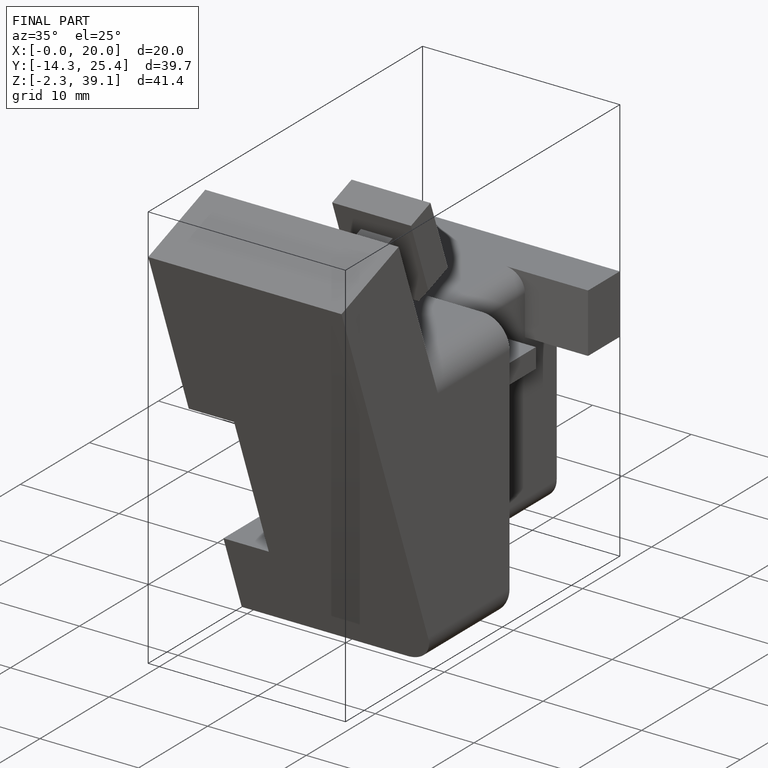
[diagram: finished part — iso view with bounding-box wireframe]
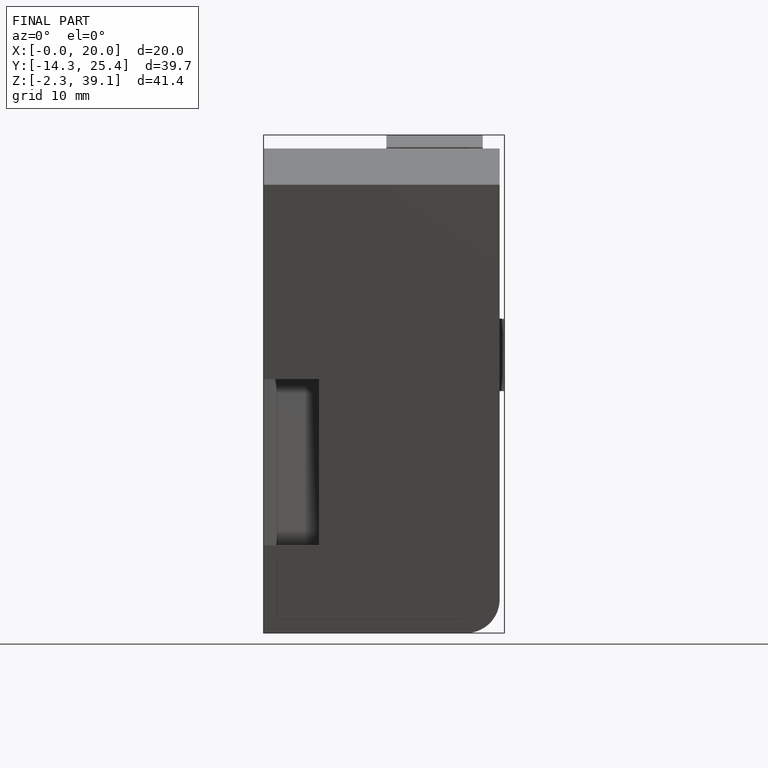
[diagram: finished part — front view with bounding-box wireframe]
